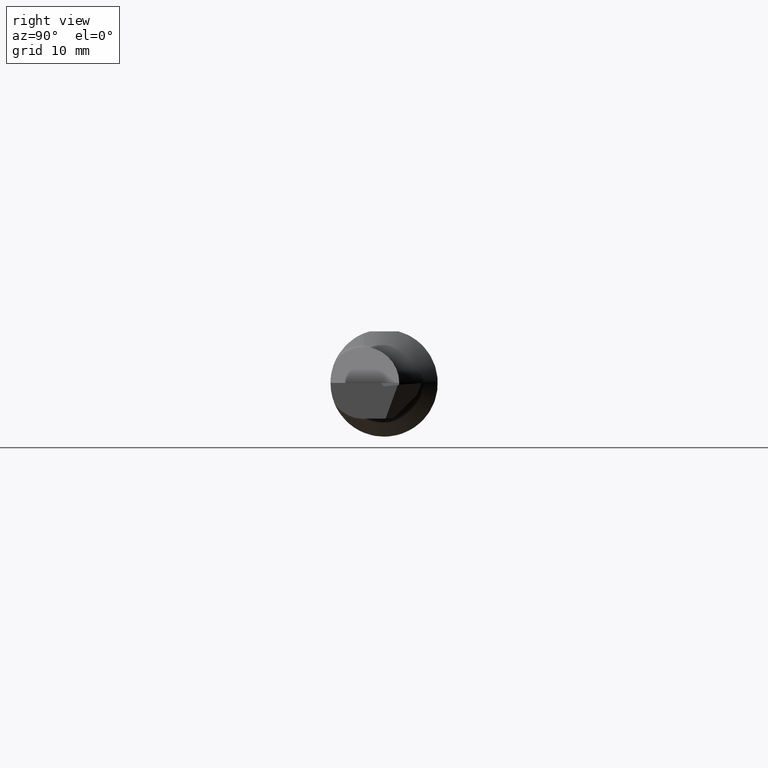
[diagram: clean part render]
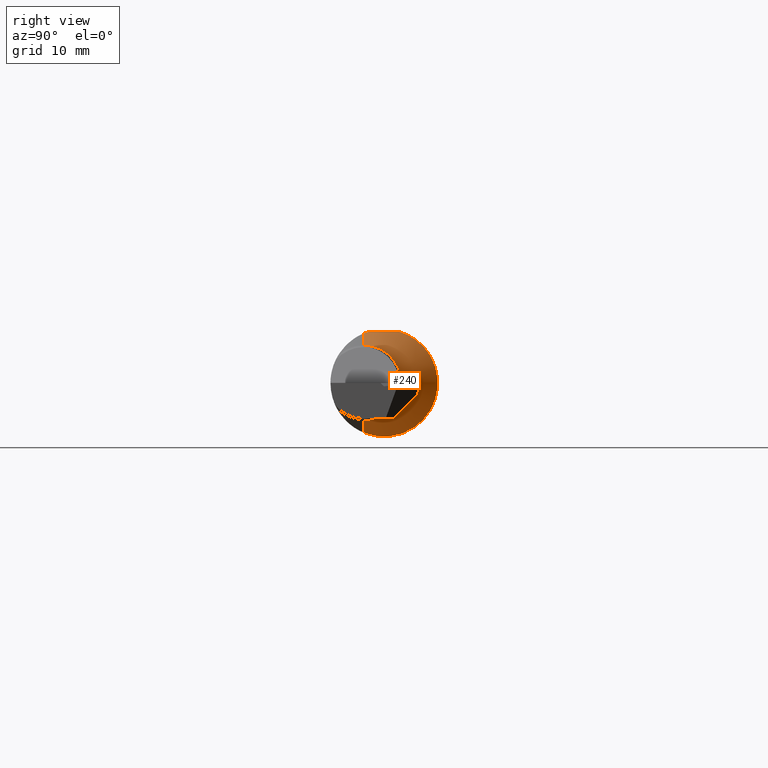
[diagram: same view with one face highlighted and labeled with its STEP entity id]
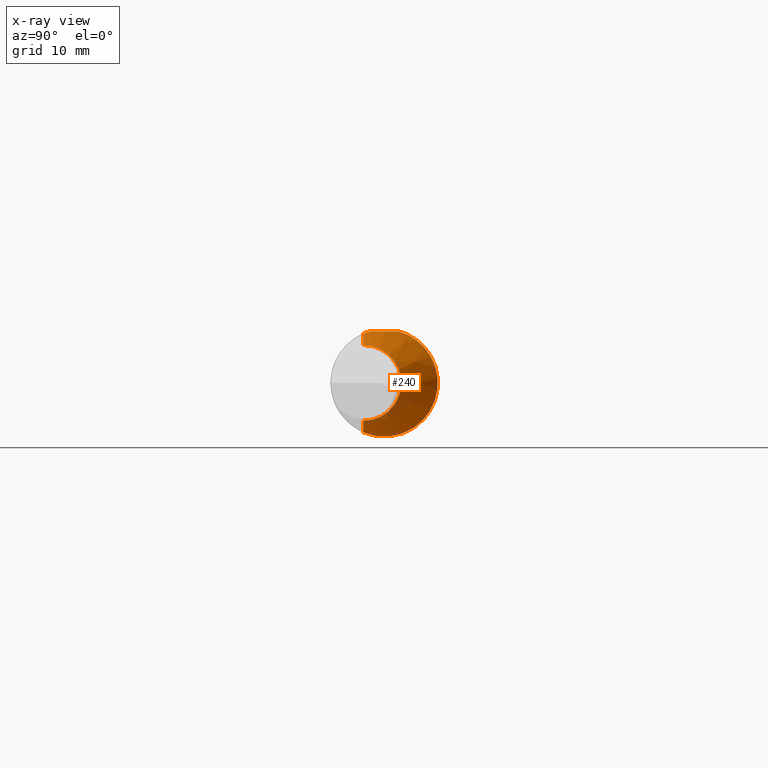
[diagram: x-ray of the same camera — body ghosted, the highlighted face saturated]
A machine part, right view. The second image highlights one B-rep face of the part: STEP entity #240.
The next image is the same camera in x-ray: the body ghosted, the highlighted face saturated — about 12% of this face is hidden behind the body in this view.
In plain terms, the highlighted conical surface has half-angle 45 deg.
Its self-contained STEP definition (entity closure, byte-faithful):
#12 = CARTESIAN_POINT ( 'NONE',  ( 1.777954695071388480, 0.1602583907463169255, 0.09790328053815619547 ) ) ;
#18 = CARTESIAN_POINT ( 'NONE',  ( 1.845585963931341222, -0.03292301117428798884, 0.1803500000000000658 ) ) ;
#42 = CARTESIAN_POINT ( 'NONE',  ( 1.771224228460478001, 0.1840318009960000556, 0.03744608662781920977 ) ) ;
#48 = CARTESIAN_POINT ( 'NONE',  ( 1.897677669529663991, -0.07234999999999980336, 0.000000000000000000 ) ) ;
#58 = FACE_OUTER_BOUND ( 'NONE', #962, .T. ) ;
#83 = CARTESIAN_POINT ( 'NONE',  ( 1.897677669529663991, -0.07234999999999978948, -0.1323223304703360359 ) ) ;
#97 = CARTESIAN_POINT ( 'NONE',  ( 1.770337763137152187, 0.1872124516334592037, -0.01487472210176730286 ) ) ;
#105 = VERTEX_POINT ( 'NONE', #426 ) ;
#116 = CARTESIAN_POINT ( 'NONE',  ( 1.820550515836688366, 0.03494845237870451704, 0.1803499999999999548 ) ) ;
#123 = CARTESIAN_POINT ( 'NONE',  ( 1.779995236286230131, 0.1531585939589148182, 0.1086796373768308538 ) ) ;
#124 = CIRCLE ( 'NONE', #856, 0.1323223304703360359 ) ;
#126 = DIRECTION ( 'NONE',  ( -1.000000000000000000, -0.000000000000000000, -0.000000000000000000 ) ) ;
#127 = CARTESIAN_POINT ( 'NONE',  ( 1.772432072879413179, 0.1797268795620591830, -0.05330411249906009952 ) ) ;
#170 = ORIENTED_EDGE ( 'NONE', *, *, #484, .T. ) ;
#172 = CARTESIAN_POINT ( 'NONE',  ( 1.776563200756604122, 0.1651118022961632903, -0.08947527289251178129 ) ) ;
#177 = CARTESIAN_POINT ( 'NONE',  ( 1.784238480591338272, 0.1386485486275685630, -0.1261636421672477359 ) ) ;
#183 = CARTESIAN_POINT ( 'NONE',  ( 1.812478857280754863, 0.04812493428509528881, -0.1814925034083489097 ) ) ;
#202 = AXIS2_PLACEMENT_3D ( 'NONE', #700, #126, #620 ) ;
#204 = CARTESIAN_POINT ( 'NONE',  ( 1.847805746031308427, -0.04949128757996133082, -0.1811094437879526287 ) ) ;
#215 = CARTESIAN_POINT ( 'NONE',  ( 1.704999999999998073, -0.07234999999999980336, 0.3249999999999999556 ) ) ;
#240 = ADVANCED_FACE ( 'NONE', ( #58 ), #579, .T. ) ;
#246 = CARTESIAN_POINT ( 'NONE',  ( 1.793480051322620783, 0.1077969305866319782, 0.1537576155098321073 ) ) ;
#250 = VERTEX_POINT ( 'NONE', #372 ) ;
#252 = CARTESIAN_POINT ( 'NONE',  ( 1.801107762570094861, 0.08323016174429369307, -0.1683102574403323726 ) ) ;
#267 = CARTESIAN_POINT ( 'NONE',  ( 1.841046750313348968, -0.01534753237029200419, 0.1803500000000000103 ) ) ;
#280 = CARTESIAN_POINT ( 'NONE',  ( 1.774547880979551184, 0.1722069005976021305, 0.07491720450804137399 ) ) ;
#291 = ORIENTED_EDGE ( 'NONE', *, *, #908, .T. ) ;
#308 = ORIENTED_EDGE ( 'NONE', *, *, #597, .T. ) ;
#325 = B_SPLINE_CURVE_WITH_KNOTS ( 'NONE', 3,
 ( #1042, #892, #391, #982 ),
 .UNSPECIFIED., .F., .F.,
 ( 4, 4 ),
 ( 7.799852739749770526E-07, 0.0006200624351649179893 ),
 .UNSPECIFIED. ) ;
#329 = CARTESIAN_POINT ( 'NONE',  ( 1.808512342576672705, 0.06018334788945476493, -0.1778582784703288122 ) ) ;
#336 = EDGE_CURVE ( 'NONE', #105, #467, #325, .T. ) ;
#341 = VERTEX_POINT ( 'NONE', #83 ) ;
#342 = CARTESIAN_POINT ( 'NONE',  ( 1.796798760652082771, 0.09699900128417589251, 0.1607818136651500696 ) ) ;
#372 = CARTESIAN_POINT ( 'NONE',  ( 1.857183623461200250, -0.07234999999999970621, -0.1728163765387992212 ) ) ;
#391 = CARTESIAN_POINT ( 'NONE',  ( 1.854251527663556942, -0.06534634870195803191, 0.1757484723364423351 ) ) ;
#407 = CARTESIAN_POINT ( 'NONE',  ( 1.857183623461200250, -0.07234999999999974785, 0.1728163765387992490 ) ) ;
#426 = CARTESIAN_POINT ( 'NONE',  ( 1.848359171801058576, -0.05073361804563107647, 0.1803500000000000381 ) ) ;
#431 = CARTESIAN_POINT ( 'NONE',  ( 1.780656052074582885, 0.1509087159451679150, -0.1112131773084087949 ) ) ;
#437 = CARTESIAN_POINT ( 'NONE',  ( 1.779558854539173396, 0.1547009345895635213, -0.1058752598168465897 ) ) ;
#440 = DIRECTION ( 'NONE',  ( -0.7071067811865511255, 0.000000000000000000, 0.7071067811865440200 ) ) ;
#467 = VERTEX_POINT ( 'NONE', #407 ) ;
#471 = EDGE_CURVE ( 'NONE', #341, #250, #589, .T. ) ;
#484 = EDGE_CURVE ( 'NONE', #898, #105, #813, .T. ) ;
#485 = CARTESIAN_POINT ( 'NONE',  ( 1.811652342510382541, 0.05073361804563572552, 0.1803500000000000381 ) ) ;
#492 = CARTESIAN_POINT ( 'NONE',  ( 1.852477893930588593, -0.06110981857011840712, -0.1775221060694107122 ) ) ;
#497 = CARTESIAN_POINT ( 'NONE',  ( 1.770621239219315690, 0.1861972792961229528, 0.02458794189566211943 ) ) ;
#503 = CARTESIAN_POINT ( 'NONE',  ( 1.820779348551172294, 0.02364555254899058240, -0.1862697665699595551 ) ) ;
#517 = DIRECTION ( 'NONE',  ( 0.000000000000000000, 0.000000000000000000, 1.000000000000000000 ) ) ;
#521 = CARTESIAN_POINT ( 'NONE',  ( 1.771146235663013435, 0.1843168879482640354, -0.03420148451633128056 ) ) ;
#572 = EDGE_CURVE ( 'NONE', #935, #467, #703, .T. ) ;
#575 = CARTESIAN_POINT ( 'NONE',  ( 1.811652342510382541, 0.05073361804563572552, 0.1803500000000000381 ) ) ;
#579 = CONICAL_SURFACE ( 'NONE', #202, 0.3249999999999999556, 0.7853981633974432830 ) ;
#582 = DIRECTION ( 'NONE',  ( -0.7071067811865511255, 8.659560562354889717E-17, -0.7071067811865440200 ) ) ;
#588 = CARTESIAN_POINT ( 'NONE',  ( 1.825054110130809093, 0.01139412105151815964, -0.1874041826882221762 ) ) ;
#589 = LINE ( 'NONE', #989, #786 ) ;
#592 = CARTESIAN_POINT ( 'NONE',  ( 1.772992082306585893, 0.1777339935978582974, -0.05960787101436530039 ) ) ;
#597 = EDGE_CURVE ( 'NONE', #935, #341, #124, .T. ) ;
#609 = CARTESIAN_POINT ( 'NONE',  ( 1.784807027521196243, 0.1366915025519611637, 0.1287798571746311960 ) ) ;
#620 = DIRECTION ( 'NONE',  ( 0.000000000000000000, 0.000000000000000000, 1.000000000000000000 ) ) ;
#660 = CARTESIAN_POINT ( 'NONE',  ( 1.807636035106981343, 0.06285457607314892670, 0.1769402963409190677 ) ) ;
#665 = CARTESIAN_POINT ( 'NONE',  ( 1.774926753194635998, 0.1708787332540029902, -0.07791196371509558072 ) ) ;
#672 = B_SPLINE_CURVE_WITH_KNOTS ( 'NONE', 3,
 ( #744, #492, #204, #751, #933, #588, #503, #183, #329, #252, #919, #823, #686, #177, #994, #431, #437, #172, #665, #592, #127, #842, #521, #97, #775, #497, #42, #738, #280, #12, #123, #609, #981, #246, #342, #831, #660, #858 ),
 .UNSPECIFIED., .F., .F.,
 ( 4, 2, 2, 2, 2, 2, 2, 2, 2, 2, 2, 2, 2, 2, 2, 2, 2, 2, 4 ),
 ( 0.003756978855824079366, 0.004750606070745804280, 0.005744233285667529193, 0.006737860500589254974, 0.007731487715510979887, 0.008725114930432705668, 0.009718742145354430581, 0.01021555575281529044, 0.01071236936027615202, 0.01170599657519787347, 0.01220281018265873679, 0.01269962379011959665, 0.01369325100504131809, 0.01468687821996304127, 0.01568050543488476445, 0.01667413264980648069, 0.01766775986472820387, 0.01866138707964992705, 0.01965501429457164675 ),
 .UNSPECIFIED. ) ;
#686 = CARTESIAN_POINT ( 'NONE',  ( 1.788189419821468062, 0.1252997508203159416, -0.1398665203331845297 ) ) ;
#690 = CARTESIAN_POINT ( 'NONE',  ( 1.897677669529663991, -0.07234999999999980336, 0.1323223304703360359 ) ) ;
#700 = CARTESIAN_POINT ( 'NONE',  ( 1.704999999999998073, -0.07234999999999980336, 0.000000000000000000 ) ) ;
#703 = LINE ( 'NONE', #215, #768 ) ;
#737 = ORIENTED_EDGE ( 'NONE', *, *, #336, .T. ) ;
#738 = CARTESIAN_POINT ( 'NONE',  ( 1.773177002644260813, 0.1770736257016730097, 0.06256871632400115568 ) ) ;
#744 = CARTESIAN_POINT ( 'NONE',  ( 1.857183623461200250, -0.07234999999999970621, -0.1728163765387992212 ) ) ;
#751 = CARTESIAN_POINT ( 'NONE',  ( 1.838512632015396830, -0.02549221419735799368, -0.1860111964125279460 ) ) ;
#768 = VECTOR ( 'NONE', #440, 39.37007874015748143 ) ;
#775 = CARTESIAN_POINT ( 'NONE',  ( 1.770172998329585301, 0.1878056362616669361, -0.001742610769309169009 ) ) ;
#786 = VECTOR ( 'NONE', #582, 39.37007874015748143 ) ;
#813 = B_SPLINE_CURVE_WITH_KNOTS ( 'NONE', 3,
 ( #485, #116, #926, #1001, #267, #18, #909, #843 ),
 .UNSPECIFIED., .F., .F.,
 ( 4, 2, 2, 4 ),
 ( 0.004201767959908196681, 0.005580933394130879570, 0.006270516111242224917, 0.006960098828353570265 ),
 .UNSPECIFIED. ) ;
#823 = CARTESIAN_POINT ( 'NONE',  ( 1.791116425318793448, 0.1155509289413751833, -0.1480264012985756661 ) ) ;
#831 = CARTESIAN_POINT ( 'NONE',  ( 1.803874789929541755, 0.07453730533396583924, 0.1723478690588709505 ) ) ;
#842 = CARTESIAN_POINT ( 'NONE',  ( 1.771509882952550630, 0.1830157774888624689, -0.04059932064178667366 ) ) ;
#843 = CARTESIAN_POINT ( 'NONE',  ( 1.848359171801058576, -0.05073361804563107647, 0.1803500000000000381 ) ) ;
#856 = AXIS2_PLACEMENT_3D ( 'NONE', #48, #1009, #517 ) ;
#858 = CARTESIAN_POINT ( 'NONE',  ( 1.811652342510382541, 0.05073361804563572552, 0.1803500000000000381 ) ) ;
#860 = ORIENTED_EDGE ( 'NONE', *, *, #572, .F. ) ;
#892 = CARTESIAN_POINT ( 'NONE',  ( 1.851310630883624908, -0.05814350708713280497, 0.1782655504275461600 ) ) ;
#898 = VERTEX_POINT ( 'NONE', #575 ) ;
#908 = EDGE_CURVE ( 'NONE', #250, #898, #672, .T. ) ;
#909 = CARTESIAN_POINT ( 'NONE',  ( 1.847294288080052027, -0.04178548040504062588, 0.1803500000000000658 ) ) ;
#919 = CARTESIAN_POINT ( 'NONE',  ( 1.797627288442569915, 0.09434647022735524746, -0.1623655635172079614 ) ) ;
#926 = CARTESIAN_POINT ( 'NONE',  ( 1.828555425751703822, 0.01874826884798287685, 0.1803500000000000103 ) ) ;
#933 = CARTESIAN_POINT ( 'NONE',  ( 1.833895706846281337, -0.01311122781479166950, -0.1872918828694021265 ) ) ;
#935 = VERTEX_POINT ( 'NONE', #690 ) ;
#962 = EDGE_LOOP ( 'NONE', ( #308, #1039, #291, #170, #737, #860 ) ) ;
#981 = CARTESIAN_POINT ( 'NONE',  ( 1.787505014431014727, 0.1275766949525765082, 0.1377888583164319225 ) ) ;
#982 = CARTESIAN_POINT ( 'NONE',  ( 1.857183623461200250, -0.07234999999999974785, 0.1728163765387992490 ) ) ;
#989 = CARTESIAN_POINT ( 'NONE',  ( 1.704999999999998073, -0.07234999999999976172, -0.3249999999999999556 ) ) ;
#994 = CARTESIAN_POINT ( 'NONE',  ( 1.782995427860555537, 0.1428842120803212323, -0.1213503740968141231 ) ) ;
#1001 = CARTESIAN_POINT ( 'NONE',  ( 1.838213209911806478, -0.006643641855691827768, 0.1803500000000000381 ) ) ;
#1009 = DIRECTION ( 'NONE',  ( -1.000000000000000000, -0.000000000000000000, -0.000000000000000000 ) ) ;
#1039 = ORIENTED_EDGE ( 'NONE', *, *, #471, .T. ) ;
#1042 = CARTESIAN_POINT ( 'NONE',  ( 1.848359171801058576, -0.05073361804563107647, 0.1803500000000000381 ) ) ;